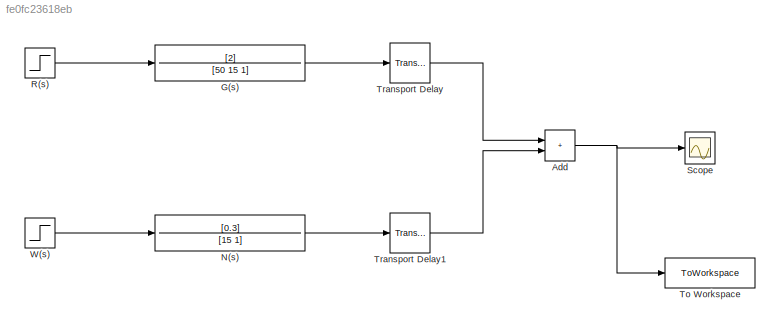
MODEL slx_fe0fc23618eb
KIND model
CONFIG AbsTol = auto
CONFIG EnableMultiTasking = off
CONFIG FixedStep = auto
CONFIG MaxStep = auto
CONFIG MinStep = auto
CONFIG RelTol = 1e-3
CONFIG SampleTimeConstraint = Unconstrained
CONFIG SolverName = VariableStepAuto
CONFIG StartTime = 0.0
CONFIG StopTime = 10.0
BLOCK [Sum] Add
  IconShape = rectangular
BLOCK [TransferFcn] G(s)
  Denominator = [50 15 1]
  Numerator = [2]
BLOCK [TransferFcn] N(s)
  Denominator = [15 1]
  Numerator = [0.3]
BLOCK [Step] R(s)
  SampleTime = 0
BLOCK [Scope] Scope
  Floating = off
  NumInputPorts = 1
  ScopeSpecificationString = Simulink.scopes.TimeScopeBlockCfg('CurrentConfiguration', extmgr.ConfigurationSet(extmgr.Configuration('Core','General UI',true),extmgr.Configuration('Core','Source UI',true),extmgr.Configuration('Sources','WiredSimulink',true),extmgr.Configuration('Visuals','Time Domain',true,'SerializedDisplays',{struct('MinYLimReal','-0.10489','MaxYLimReal','0.94397','YLabelReal','','MinYLimMag','0.00000','MaxY...<+1454ch>
BLOCK [ToWorkspace] To Workspace
  FixptAsFi = on
  MaxDataPoints = inf
  SampleTime = -1
  SaveFormat = Timeseries
  VariableName = simout
BLOCK [TransportDelay] Transport Delay
  DelayTime = exp(-5)
BLOCK [TransportDelay] Transport Delay1
  DelayTime = exp(-5)
BLOCK [Step] W(s)
  SampleTime = 0
NET Add:1 -> Scope:1, To Workspace:1
LINE G(s):1 -> Transport Delay:1
LINE N(s):1 -> Transport Delay1:1
LINE R(s):1 -> G(s):1
LINE Transport Delay1:1 -> Add:2
LINE Transport Delay:1 -> Add:1
LINE W(s):1 -> N(s):1
note: NET lines group one-source signal fan-out (src -> all destinations, sorted); 1:1 wires keep LINE
